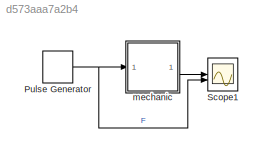
MODEL slx_d573aaa7a2b4
KIND model
CONFIG AbsTol = auto
CONFIG EnableMultiTasking = off
CONFIG FixedStep = auto
CONFIG MaxStep = te/100
CONFIG MinStep = auto
CONFIG RelTol = 1e-3
CONFIG SampleTimeConstraint = Unconstrained
CONFIG SolverName = VariableStepAuto
CONFIG StartTime = 0.0
CONFIG StopTime = te
BLOCK [DiscretePulseGenerator] Pulse Generator
  Amplitude = Amplitude
  Period = Period
  PulseType = Time based
  PulseWidth = PulseWidth
BLOCK [Scope] Scope1
  Floating = off
  NumInputPorts = 2
  ScopeSpecificationString = Simulink.scopes.TimeScopeBlockCfg('CurrentConfiguration', extmgr.ConfigurationSet(extmgr.Configuration('Core','General UI',true),extmgr.Configuration('Core','Source UI',true),extmgr.Configuration('Sources','WiredSimulink',true,'DataLoggingVariableName','ScopeData1'),extmgr.Configuration('Visuals','Time Domain',true,'SerializedDisplays',{struct('MinYLimReal','0.00065','MaxYLimReal','0.01138','YLabe...<+2151ch>
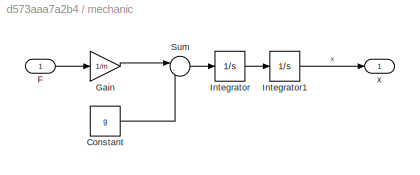
BLOCK [SubSystem] mechanic
BLOCK [Constant] mechanic/Constant
  Value = g
BLOCK [Inport] mechanic/F
BLOCK [Gain] mechanic/Gain
  Gain = 1/m
BLOCK [Integrator] mechanic/Integrator
BLOCK [Integrator] mechanic/Integrator1
  InitialCondition = x0
BLOCK [Sum] mechanic/Sum
  Inputs = |-+
BLOCK [Outport] mechanic/x
NET Pulse Generator:1 -> Scope1:2, mechanic:1
LINE mechanic/Constant:1 -> mechanic/Sum:2
LINE mechanic/F:1 -> mechanic/Gain:1
LINE mechanic/Gain:1 -> mechanic/Sum:1
LINE mechanic/Integrator1:1 -> mechanic/x:1
LINE mechanic/Integrator:1 -> mechanic/Integrator1:1
LINE mechanic/Sum:1 -> mechanic/Integrator:1
LINE mechanic:1 -> Scope1:1
note: NET lines group one-source signal fan-out (src -> all destinations, sorted); 1:1 wires keep LINE
